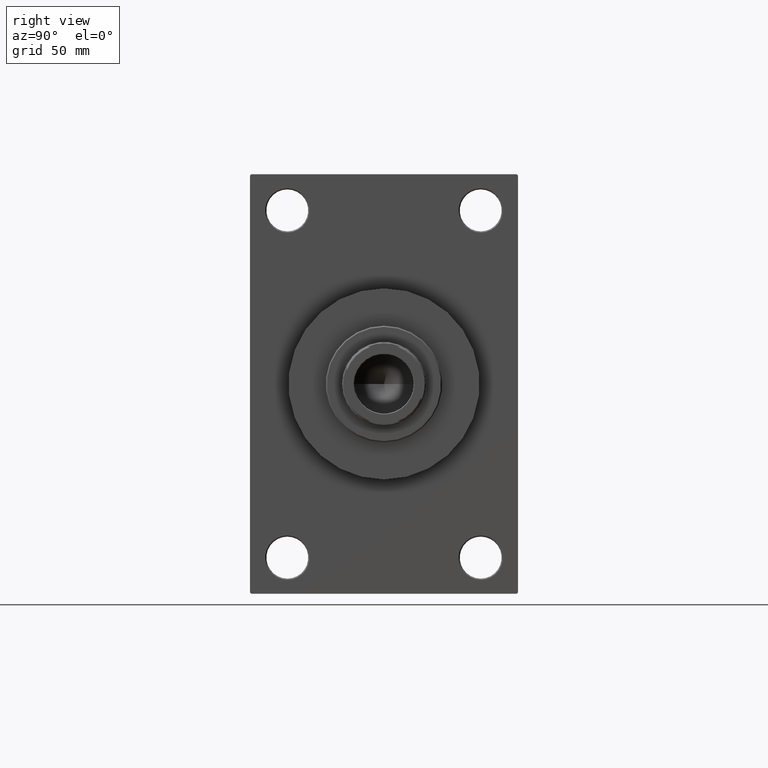
[diagram: clean part render]
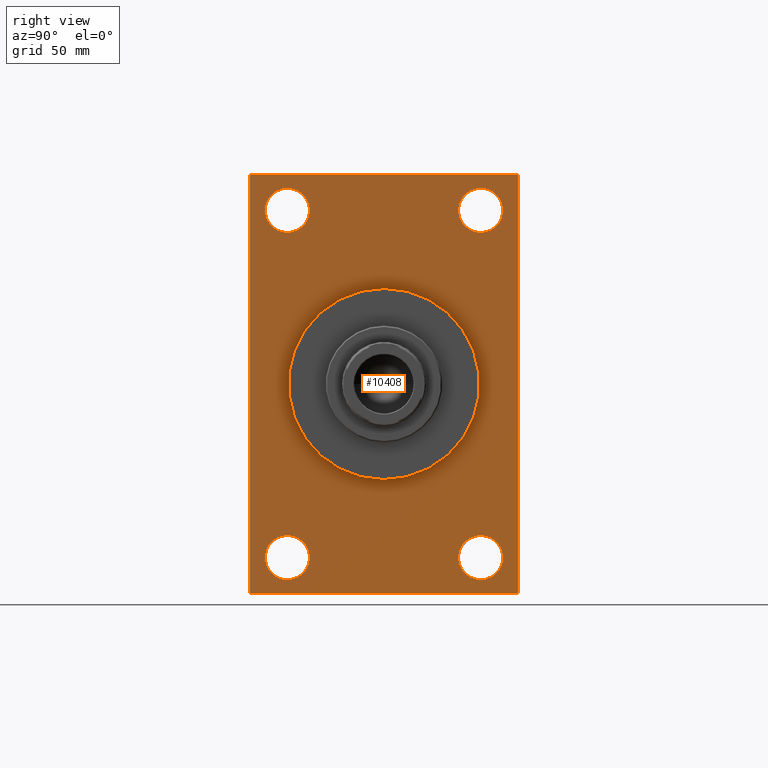
[diagram: same view with one face highlighted and labeled with its STEP entity id]
A machine part, right view. The second image highlights one B-rep face of the part: STEP entity #10408.
In plain terms, the highlighted planar face has unit normal (-1, 0, 0).
Its self-contained STEP definition (entity closure, byte-faithful):
#42 = DIRECTION ( 'NONE',  ( 0.000000000000000000, 0.000000000000000000, -1.000000000000000000 ) ) ;
#168 = CIRCLE ( 'NONE', #13236, 41.00000000000000000 ) ;
#473 = EDGE_LOOP ( 'NONE', ( #22851, #7005, #45922, #39635, #2294, #35706, #2577, #6006 ) ) ;
#903 = CARTESIAN_POINT ( 'NONE',  ( 159.0000000000000000, 56.99999999999994316, -90.00000000000000000 ) ) ;
#967 = ORIENTED_EDGE ( 'NONE', *, *, #24253, .T. ) ;
#1073 = CARTESIAN_POINT ( 'NONE',  ( 159.0000000000000000, -56.99999999999994316, 90.00000000000000000 ) ) ;
#2162 = CARTESIAN_POINT ( 'NONE',  ( 159.0000000000000000, 56.99999999999997158, 90.00000000000000000 ) ) ;
#2294 = ORIENTED_EDGE ( 'NONE', *, *, #15544, .F. ) ;
#2370 = VERTEX_POINT ( 'NONE', #34923 ) ;
#2577 = ORIENTED_EDGE ( 'NONE', *, *, #8931, .T. ) ;
#2713 = EDGE_CURVE ( 'NONE', #46482, #6023, #36086, .T. ) ;
#3553 = CARTESIAN_POINT ( 'NONE',  ( 159.0000000000000000, 57.50000000000000000, 90.00000000000000000 ) ) ;
#3876 = ORIENTED_EDGE ( 'NONE', *, *, #42410, .T. ) ;
#3966 = AXIS2_PLACEMENT_3D ( 'NONE', #30241, #7829, #33619 ) ;
#4278 = AXIS2_PLACEMENT_3D ( 'NONE', #41490, #9439, #5340 ) ;
#4611 = EDGE_LOOP ( 'NONE', ( #42940, #22215 ) ) ;
#4735 = DIRECTION ( 'NONE',  ( 0.000000000000000000, 0.000000000000000000, 1.000000000000000000 ) ) ;
#5009 = CARTESIAN_POINT ( 'NONE',  ( 159.0000000000000000, 57.50000000000000000, 90.00000000000000000 ) ) ;
#5340 = DIRECTION ( 'NONE',  ( 0.000000000000000000, 0.000000000000000000, 1.000000000000000000 ) ) ;
#6006 = ORIENTED_EDGE ( 'NONE', *, *, #2713, .T. ) ;
#6023 = VERTEX_POINT ( 'NONE', #18008 ) ;
#6640 = AXIS2_PLACEMENT_3D ( 'NONE', #21176, #39967, #20934 ) ;
#6786 = VECTOR ( 'NONE', #18009, 1000.000000000000114 ) ;
#7005 = ORIENTED_EDGE ( 'NONE', *, *, #46074, .T. ) ;
#7784 = PLANE ( 'NONE',  #9344 ) ;
#7829 = DIRECTION ( 'NONE',  ( -1.000000000000000000, -0.000000000000000000, -0.000000000000000000 ) ) ;
#7910 = AXIS2_PLACEMENT_3D ( 'NONE', #31860, #42219, #32108 ) ;
#8204 = EDGE_CURVE ( 'NONE', #6023, #37941, #13792, .T. ) ;
#8487 = VERTEX_POINT ( 'NONE', #41466 ) ;
#8702 = DIRECTION ( 'NONE',  ( -0.000000000000000000, 0.7071067811865474617, 0.7071067811865474617 ) ) ;
#8724 = FACE_OUTER_BOUND ( 'NONE', #473, .T. ) ;
#8931 = EDGE_CURVE ( 'NONE', #21836, #46482, #11257, .T. ) ;
#9185 = CARTESIAN_POINT ( 'NONE',  ( 159.0000000000000000, 41.49999999999999289, -83.99999999999998579 ) ) ;
#9330 = EDGE_CURVE ( 'NONE', #19914, #10614, #32454, .T. ) ;
#9344 = AXIS2_PLACEMENT_3D ( 'NONE', #19096, #45114, #15479 ) ;
#9439 = DIRECTION ( 'NONE',  ( -1.000000000000000000, -0.000000000000000000, -0.000000000000000000 ) ) ;
#9703 = CIRCLE ( 'NONE', #6640, 9.500000000000008882 ) ;
#10154 = AXIS2_PLACEMENT_3D ( 'NONE', #19235, #45018, #33940 ) ;
#10209 = FACE_BOUND ( 'NONE', #4611, .T. ) ;
#10408 = ADVANCED_FACE ( 'NONE', ( #10209, #21526, #32614, #47311, #19326, #8724 ), #7784, .F. ) ;
#10614 = VERTEX_POINT ( 'NONE', #9185 ) ;
#10653 = CARTESIAN_POINT ( 'NONE',  ( 159.0000000000000000, -57.50000000000000000, 90.00000000000000000 ) ) ;
#10796 = CARTESIAN_POINT ( 'NONE',  ( 159.0000000000000000, -56.99999999999997158, -90.00000000000000000 ) ) ;
#11095 = EDGE_LOOP ( 'NONE', ( #25676, #3876 ) ) ;
#11185 = CARTESIAN_POINT ( 'NONE',  ( 159.0000000000000000, 0.000000000000000000, 0.000000000000000000 ) ) ;
#11257 = LINE ( 'NONE', #3553, #18581 ) ;
#11576 = CARTESIAN_POINT ( 'NONE',  ( 159.0000000000000000, 41.49999999999999289, 84.00000000000001421 ) ) ;
#11658 = VECTOR ( 'NONE', #33452, 1000.000000000000114 ) ;
#11837 = LINE ( 'NONE', #41226, #35593 ) ;
#12158 = DIRECTION ( 'NONE',  ( 0.000000000000000000, 0.000000000000000000, 1.000000000000000000 ) ) ;
#12425 = AXIS2_PLACEMENT_3D ( 'NONE', #26873, #13105, #27339 ) ;
#12632 = VERTEX_POINT ( 'NONE', #13346 ) ;
#13009 = VECTOR ( 'NONE', #38251, 1000.000000000000000 ) ;
#13105 = DIRECTION ( 'NONE',  ( -1.000000000000000000, -0.000000000000000000, -0.000000000000000000 ) ) ;
#13236 = AXIS2_PLACEMENT_3D ( 'NONE', #11185, #29045, #21562 ) ;
#13346 = CARTESIAN_POINT ( 'NONE',  ( 159.0000000000000000, -41.50000000000000711, -83.99999999999998579 ) ) ;
#13792 = LINE ( 'NONE', #10653, #43853 ) ;
#13908 = LINE ( 'NONE', #39692, #46763 ) ;
#13915 = EDGE_CURVE ( 'NONE', #16606, #33553, #28699, .T. ) ;
#14336 = CARTESIAN_POINT ( 'NONE',  ( 159.0000000000000000, 56.99999999999997158, 90.00000000000000000 ) ) ;
#15479 = DIRECTION ( 'NONE',  ( -0.000000000000000000, 0.000000000000000000, 1.000000000000000000 ) ) ;
#15544 = EDGE_CURVE ( 'NONE', #22496, #2370, #23101, .T. ) ;
#15802 = AXIS2_PLACEMENT_3D ( 'NONE', #36997, #45407, #12158 ) ;
#16606 = VERTEX_POINT ( 'NONE', #47239 ) ;
#16687 = CARTESIAN_POINT ( 'NONE',  ( 159.0000000000000000, -56.99999999999997158, -90.00000000000000000 ) ) ;
#17508 = AXIS2_PLACEMENT_3D ( 'NONE', #20364, #45456, #4735 ) ;
#18008 = CARTESIAN_POINT ( 'NONE',  ( 159.0000000000000000, -57.50000000000000000, 89.49999999999994316 ) ) ;
#18009 = DIRECTION ( 'NONE',  ( -0.000000000000000000, -0.7071067811865474617, -0.7071067811865474617 ) ) ;
#18581 = VECTOR ( 'NONE', #47188, 1000.000000000000000 ) ;
#18889 = CIRCLE ( 'NONE', #4278, 9.500000000000008882 ) ;
#19096 = CARTESIAN_POINT ( 'NONE',  ( 159.0000000000000000, 0.000000000000000000, 0.000000000000000000 ) ) ;
#19235 = CARTESIAN_POINT ( 'NONE',  ( 159.0000000000000000, -41.50000000000000711, -74.49999999999998579 ) ) ;
#19326 = FACE_BOUND ( 'NONE', #25524, .T. ) ;
#19914 = VERTEX_POINT ( 'NONE', #32216 ) ;
#19966 = ORIENTED_EDGE ( 'NONE', *, *, #43705, .F. ) ;
#20015 = EDGE_CURVE ( 'NONE', #45057, #23359, #40924, .T. ) ;
#20364 = CARTESIAN_POINT ( 'NONE',  ( 159.0000000000000000, 41.49999999999999289, -74.49999999999998579 ) ) ;
#20934 = DIRECTION ( 'NONE',  ( 0.000000000000000000, 0.000000000000000000, 1.000000000000000000 ) ) ;
#21176 = CARTESIAN_POINT ( 'NONE',  ( 159.0000000000000000, -41.50000000000000711, -74.49999999999998579 ) ) ;
#21526 = FACE_BOUND ( 'NONE', #11095, .T. ) ;
#21562 = DIRECTION ( 'NONE',  ( 0.000000000000000000, 0.000000000000000000, -1.000000000000000000 ) ) ;
#21836 = VERTEX_POINT ( 'NONE', #2162 ) ;
#22215 = ORIENTED_EDGE ( 'NONE', *, *, #20015, .T. ) ;
#22496 = VERTEX_POINT ( 'NONE', #23740 ) ;
#22851 = ORIENTED_EDGE ( 'NONE', *, *, #8204, .T. ) ;
#22924 = ORIENTED_EDGE ( 'NONE', *, *, #25511, .T. ) ;
#23101 = LINE ( 'NONE', #5009, #13009 ) ;
#23359 = VERTEX_POINT ( 'NONE', #36541 ) ;
#23605 = ORIENTED_EDGE ( 'NONE', *, *, #9330, .T. ) ;
#23740 = CARTESIAN_POINT ( 'NONE',  ( 159.0000000000000000, 57.50000000000000000, 89.49999999999997158 ) ) ;
#24253 = EDGE_CURVE ( 'NONE', #10614, #19914, #32127, .T. ) ;
#25255 = CARTESIAN_POINT ( 'NONE',  ( 159.0000000000000000, -57.50000000000000000, 89.49999999999994316 ) ) ;
#25511 = EDGE_CURVE ( 'NONE', #33553, #16606, #36579, .T. ) ;
#25524 = EDGE_LOOP ( 'NONE', ( #19966, #46446 ) ) ;
#25676 = ORIENTED_EDGE ( 'NONE', *, *, #26916, .T. ) ;
#25851 = VERTEX_POINT ( 'NONE', #30357 ) ;
#26873 = CARTESIAN_POINT ( 'NONE',  ( 159.0000000000000000, -41.50000000000000711, 74.50000000000001421 ) ) ;
#26916 = EDGE_CURVE ( 'NONE', #12632, #8487, #9703, .T. ) ;
#26990 = VERTEX_POINT ( 'NONE', #903 ) ;
#27339 = DIRECTION ( 'NONE',  ( 0.000000000000000000, 0.000000000000000000, 1.000000000000000000 ) ) ;
#28623 = DIRECTION ( 'NONE',  ( 0.000000000000000000, -1.000000000000000000, 0.000000000000000000 ) ) ;
#28699 = CIRCLE ( 'NONE', #7910, 9.500000000000008882 ) ;
#29045 = DIRECTION ( 'NONE',  ( 1.000000000000000000, 0.000000000000000000, 0.000000000000000000 ) ) ;
#29818 = CARTESIAN_POINT ( 'NONE',  ( 159.0000000000000000, -57.50000000000000000, -89.49999999999991473 ) ) ;
#30241 = CARTESIAN_POINT ( 'NONE',  ( 159.0000000000000000, 41.49999999999999289, -74.49999999999998579 ) ) ;
#30357 = CARTESIAN_POINT ( 'NONE',  ( 159.0000000000000000, 5.021051876504148963E-15, -41.00000000000000000 ) ) ;
#30623 = EDGE_CURVE ( 'NONE', #23359, #45057, #18889, .T. ) ;
#31860 = CARTESIAN_POINT ( 'NONE',  ( 159.0000000000000000, 41.49999999999999289, 74.50000000000001421 ) ) ;
#31886 = EDGE_CURVE ( 'NONE', #22496, #21836, #39889, .T. ) ;
#32108 = DIRECTION ( 'NONE',  ( 0.000000000000000000, 0.000000000000000000, 1.000000000000000000 ) ) ;
#32127 = CIRCLE ( 'NONE', #17508, 9.500000000000008882 ) ;
#32216 = CARTESIAN_POINT ( 'NONE',  ( 159.0000000000000000, 41.49999999999999289, -64.99999999999997158 ) ) ;
#32454 = CIRCLE ( 'NONE', #3966, 9.500000000000008882 ) ;
#32614 = FACE_BOUND ( 'NONE', #33269, .T. ) ;
#32899 = DIRECTION ( 'NONE',  ( 0.000000000000000000, -0.7071067811865474617, 0.7071067811865474617 ) ) ;
#33269 = EDGE_LOOP ( 'NONE', ( #967, #23605 ) ) ;
#33452 = DIRECTION ( 'NONE',  ( 0.000000000000000000, 0.7071067811865474617, -0.7071067811865474617 ) ) ;
#33553 = VERTEX_POINT ( 'NONE', #11576 ) ;
#33619 = DIRECTION ( 'NONE',  ( 0.000000000000000000, 0.000000000000000000, 1.000000000000000000 ) ) ;
#33940 = DIRECTION ( 'NONE',  ( 0.000000000000000000, 0.000000000000000000, 1.000000000000000000 ) ) ;
#33990 = VERTEX_POINT ( 'NONE', #42977 ) ;
#34426 = CARTESIAN_POINT ( 'NONE',  ( 159.0000000000000000, -41.50000000000000711, 84.00000000000001421 ) ) ;
#34446 = ORIENTED_EDGE ( 'NONE', *, *, #13915, .T. ) ;
#34923 = CARTESIAN_POINT ( 'NONE',  ( 159.0000000000000000, 57.50000000000000000, -89.49999999999988631 ) ) ;
#35477 = AXIS2_PLACEMENT_3D ( 'NONE', #44339, #37100, #40712 ) ;
#35545 = VERTEX_POINT ( 'NONE', #16687 ) ;
#35593 = VECTOR ( 'NONE', #8702, 1000.000000000000114 ) ;
#35706 = ORIENTED_EDGE ( 'NONE', *, *, #31886, .T. ) ;
#36086 = LINE ( 'NONE', #25255, #6786 ) ;
#36541 = CARTESIAN_POINT ( 'NONE',  ( 159.0000000000000000, -41.50000000000000711, 65.00000000000000000 ) ) ;
#36579 = CIRCLE ( 'NONE', #15802, 9.500000000000008882 ) ;
#36997 = CARTESIAN_POINT ( 'NONE',  ( 159.0000000000000000, 41.49999999999999289, 74.50000000000001421 ) ) ;
#37100 = DIRECTION ( 'NONE',  ( 1.000000000000000000, 0.000000000000000000, 0.000000000000000000 ) ) ;
#37105 = EDGE_CURVE ( 'NONE', #26990, #35545, #13908, .T. ) ;
#37282 = LINE ( 'NONE', #10796, #11658 ) ;
#37900 = CIRCLE ( 'NONE', #35477, 41.00000000000000000 ) ;
#37941 = VERTEX_POINT ( 'NONE', #29818 ) ;
#38251 = DIRECTION ( 'NONE',  ( 0.000000000000000000, 0.000000000000000000, -1.000000000000000000 ) ) ;
#39635 = ORIENTED_EDGE ( 'NONE', *, *, #44212, .T. ) ;
#39692 = CARTESIAN_POINT ( 'NONE',  ( 159.0000000000000000, 57.50000000000000000, -90.00000000000000000 ) ) ;
#39889 = LINE ( 'NONE', #14336, #46622 ) ;
#39967 = DIRECTION ( 'NONE',  ( -1.000000000000000000, -0.000000000000000000, -0.000000000000000000 ) ) ;
#40712 = DIRECTION ( 'NONE',  ( 0.000000000000000000, 0.000000000000000000, -1.000000000000000000 ) ) ;
#40924 = CIRCLE ( 'NONE', #12425, 9.500000000000008882 ) ;
#41226 = CARTESIAN_POINT ( 'NONE',  ( 159.0000000000000000, 57.50000000000000000, -89.49999999999994316 ) ) ;
#41466 = CARTESIAN_POINT ( 'NONE',  ( 159.0000000000000000, -41.50000000000000711, -64.99999999999997158 ) ) ;
#41490 = CARTESIAN_POINT ( 'NONE',  ( 159.0000000000000000, -41.50000000000000711, 74.50000000000001421 ) ) ;
#41680 = CIRCLE ( 'NONE', #10154, 9.500000000000008882 ) ;
#41809 = EDGE_LOOP ( 'NONE', ( #34446, #22924 ) ) ;
#42219 = DIRECTION ( 'NONE',  ( -1.000000000000000000, -0.000000000000000000, -0.000000000000000000 ) ) ;
#42410 = EDGE_CURVE ( 'NONE', #8487, #12632, #41680, .T. ) ;
#42940 = ORIENTED_EDGE ( 'NONE', *, *, #30623, .T. ) ;
#42977 = CARTESIAN_POINT ( 'NONE',  ( 159.0000000000000000, 0.000000000000000000, 41.00000000000000000 ) ) ;
#43705 = EDGE_CURVE ( 'NONE', #33990, #25851, #168, .T. ) ;
#43853 = VECTOR ( 'NONE', #42, 1000.000000000000000 ) ;
#44212 = EDGE_CURVE ( 'NONE', #26990, #2370, #11837, .T. ) ;
#44339 = CARTESIAN_POINT ( 'NONE',  ( 159.0000000000000000, 0.000000000000000000, 0.000000000000000000 ) ) ;
#44975 = EDGE_CURVE ( 'NONE', #25851, #33990, #37900, .T. ) ;
#45018 = DIRECTION ( 'NONE',  ( -1.000000000000000000, -0.000000000000000000, -0.000000000000000000 ) ) ;
#45057 = VERTEX_POINT ( 'NONE', #34426 ) ;
#45114 = DIRECTION ( 'NONE',  ( -1.000000000000000000, 0.000000000000000000, -0.000000000000000000 ) ) ;
#45407 = DIRECTION ( 'NONE',  ( -1.000000000000000000, -0.000000000000000000, -0.000000000000000000 ) ) ;
#45456 = DIRECTION ( 'NONE',  ( -1.000000000000000000, -0.000000000000000000, -0.000000000000000000 ) ) ;
#45922 = ORIENTED_EDGE ( 'NONE', *, *, #37105, .F. ) ;
#46074 = EDGE_CURVE ( 'NONE', #37941, #35545, #37282, .T. ) ;
#46446 = ORIENTED_EDGE ( 'NONE', *, *, #44975, .F. ) ;
#46482 = VERTEX_POINT ( 'NONE', #1073 ) ;
#46622 = VECTOR ( 'NONE', #32899, 1000.000000000000114 ) ;
#46763 = VECTOR ( 'NONE', #28623, 1000.000000000000000 ) ;
#47188 = DIRECTION ( 'NONE',  ( 0.000000000000000000, -1.000000000000000000, 0.000000000000000000 ) ) ;
#47239 = CARTESIAN_POINT ( 'NONE',  ( 159.0000000000000000, 41.49999999999999289, 65.00000000000000000 ) ) ;
#47311 = FACE_BOUND ( 'NONE', #41809, .T. ) ;